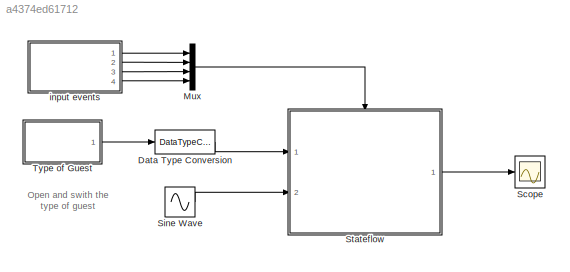
MODEL slx_a4374ed61712
KIND model
CONFIG AbsTol = auto
CONFIG FixedStep = 0.1
CONFIG MaxStep = auto
CONFIG MinStep = auto
CONFIG RelTol = 1e-3
CONFIG SampleTimeConstraint = Unconstrained
CONFIG Solver = FixedStepDiscrete
CONFIG SolverMode = Auto
CONFIG SolverName = FixedStepDiscrete
CONFIG StartTime = 0.0
CONFIG StopTime = 10.0
BLOCK [DataTypeConversion] Data Type Conversion
  OutDataTypeStr = int8
  RndMeth = Floor
  SaturateOnIntegerOverflow = off
BLOCK [Mux] Mux
  DisplayOption = bar
  Ports = [4, 1]
BLOCK [Scope] Scope
  Ports = [1]
  ScopeSpecificationString = C++SS(StrPVP('Location','[656, 93, 980, 332]'),StrPVP('Open','off'),MxPVP('AxesTitles',24,'struct(''axes1'',''%<SignalLabel>'')'),StrPVP('ShowLegends','off'),StrPVP('TimeRange','10'),StrPVP('YMin','-4'),StrPVP('YMax','4'),StrPVP('DataFormat','StructureWithTime'),StrPVP('BlockParamSampleTime','0'),StrPVP('LimitDataPoints','on'),StrPVP('Decimation','1'),StrPVP('BlockParamSampleInput','off'))
BLOCK [Sin] Sine Wave
  Amplitude = 2
  Frequency = 10
  Ports = [0, 1]
  SampleTime = 0.1
  Samples = 20
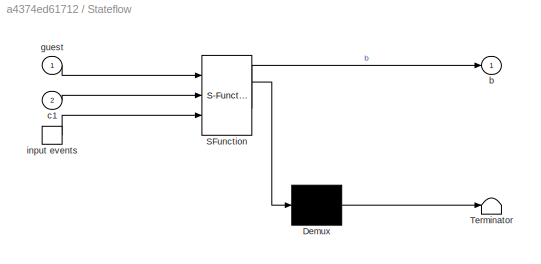
BLOCK [SubSystem] Stateflow
  ErrorFcn = Stateflow.Translate.translate
  PermitHierarchicalResolution = ExplicitOnly
  Ports = [2, 1, 0, 1]
  RequestExecContextInheritance = off
  SFBlockType = Chart
  TreatAsAtomicUnit = on
  Variant = off
BLOCK [Demux] Stateflow/ Demux 
  Outputs = 1
  Ports = [1, 1]
BLOCK [S-Function] Stateflow/ SFunction 
  EnableBusSupport = off
  FunctionName = sf_sfun
  PortCounts = [3 2]
  Ports = [3, 2]
  SFunctionDeploymentMode = off
  Tag = Stateflow S-Function model02_2015b 1
BLOCK [Terminator] Stateflow/ Terminator 
BLOCK [TriggerPort] Stateflow/ input events 
  Ports = [0, 1]
  ShowOutputPort = on
BLOCK [Outport] Stateflow/b
  IconDisplay = Port number
BLOCK [Inport] Stateflow/c1
  IconDisplay = Port number
  Port = 2
BLOCK [Inport] Stateflow/guest
  IconDisplay = Port number
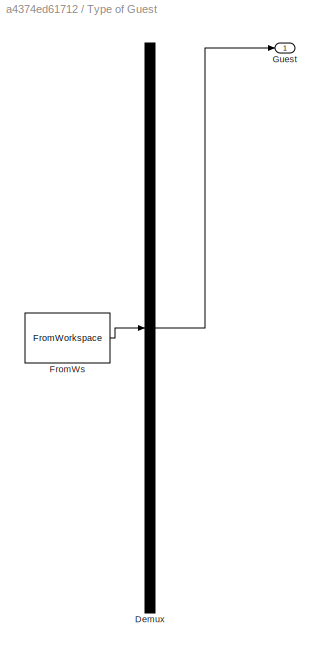
BLOCK [SubSystem] Type of Guest
  ClipboardFcn = sigbuilder_block('clipboard');
  CloseFcn = sigbuilder_block('close');
  ContinueFcn = sigbuilder_block('continue')
  CopyFcn = sigbuilder_block('copy');
  DeleteFcn = sigbuilder_block('delete');
  LoadFcn = sigbuilder_block('load');
  MaskHideContents = on
  ModelCloseFcn = sigbuilder_block('modelClose');
  NameChangeFcn = sigbuilder_block('namechange');
  OpenFcn = sigbuilder_block('open',[147.75 115.5 550.5 360 ]);
  PauseFcn = sigbuilder_block('pause')
  Ports = [0, 1]
  PreSaveFcn = sigbuilder_block('preSave');
  RequestExecContextInheritance = off
  StartFcn = sigbuilder_block('start');
  StopFcn = sigbuilder_block('stop');
  Tag = STV Subsys
  Variant = off
BLOCK [Demux] Type of Guest/Demux
  Outputs = 1
  Ports = [1, 1]
  Tag = STV Demux
BLOCK [FromWorkspace] Type of Guest/FromWs
  SampleTime = 0
  Tag = STV FromWs
  VariableName = tuvar
  ZeroCross = on
BLOCK [Outport] Type of Guest/Guest
  IconDisplay = Port number
  Tag = STV Outport
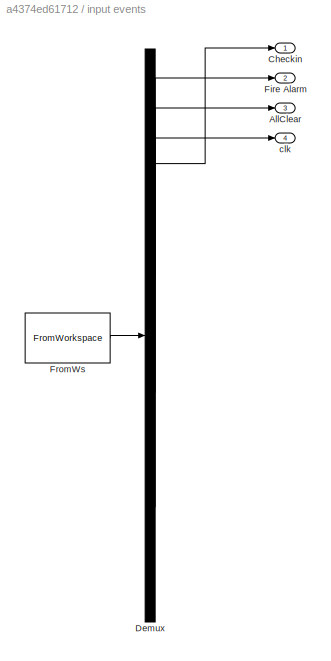
BLOCK [SubSystem] input events
  ClipboardFcn = sigbuilder_block('clipboard');
  CloseFcn = sigbuilder_block('close');
  ContinueFcn = sigbuilder_block('continue')
  CopyFcn = sigbuilder_block('copy');
  DeleteFcn = sigbuilder_block('delete');
  LoadFcn = sigbuilder_block('load');
  MaskHideContents = on
  ModelCloseFcn = sigbuilder_block('modelClose');
  NameChangeFcn = sigbuilder_block('namechange');
  OpenFcn = sigbuilder_block('open',[121.5 125.25 549.75 360 ]);
  PauseFcn = sigbuilder_block('pause')
  Ports = [0, 4]
  PreSaveFcn = sigbuilder_block('preSave');
  RequestExecContextInheritance = off
  StartFcn = sigbuilder_block('start');
  StopFcn = sigbuilder_block('stop');
  Tag = STV Subsys
  Variant = off
BLOCK [Outport] input events/AllClear
  IconDisplay = Port number
  Port = 3
  Tag = STV Outport
BLOCK [Outport] input events/Checkin
  IconDisplay = Port number
  Tag = STV Outport
BLOCK [Demux] input events/Demux
  Ports = [1, 4]
  Tag = STV Demux
BLOCK [Outport] input events/Fire Alarm
  IconDisplay = Port number
  Port = 2
  Tag = STV Outport
BLOCK [FromWorkspace] input events/FromWs
  SampleTime = 0
  Tag = STV FromWs
  VariableName = tuvar
  ZeroCross = on
BLOCK [Outport] input events/clk
  IconDisplay = Port number
  Port = 4
  Tag = STV Outport
ANNOTATION (root): Open and swith the type of guest
LINE Data Type Conversion:1 -> Stateflow:1
LINE Mux:1 -> Stateflow:trigger
LINE Sine Wave:1 -> Stateflow:2
LINE Stateflow:1 -> Scope:1
LINE Type of Guest/Demux:1 -> Type of Guest/Guest:1
LINE Type of Guest/FromWs:1 -> Type of Guest/Demux:1
LINE Type of Guest:1 -> Data Type Conversion:1
LINE input events/Demux:1 -> input events/Checkin:1
LINE input events/Demux:2 -> input events/Fire Alarm:1
LINE input events/Demux:3 -> input events/AllClear:1
LINE input events/Demux:4 -> input events/clk:1
LINE input events/FromWs:1 -> input events/Demux:1
LINE input events:1 -> Mux:1
LINE input events:2 -> Mux:2
LINE input events:3 -> Mux:3
LINE input events:4 -> Mux:4
CHART Stateflow states=15 transitions=30
  STATE_LABEL 'HotelStateflow'
  STATE_LABEL 'NonSmokingRoom\n entry: b=unpack();\n during: b=callhome();\n exit: b=pack();'
  STATE_LABEL 'y=pack'
  STATE_LABEL '{ aVarTruthTableCondition_1 = (c1>1); }'
  STATE_LABEL '[aVarTruthTableCondition_1]'
  STATE_LABEL '{ y=2; }'
  STATE_LABEL '[!aVarTruthTableCondition_1]'
  STATE_LABEL '{ y=1; }'
  STATE_LABEL 'y=unpack'
  STATE_LABEL '[c1<0]'
  STATE_LABEL '{y=3;}'
  STATE_LABEL '{y=4;}'
  STATE_LABEL 'y=callhome'
  STATE_LABEL 'SCRIPT:\nfunction y=callhome()\n\n%do some calculations\n \ny=c1*2;'
  STATE_LABEL 'wait'
  STATE_LABEL 'SmokingRoom'
  STATE_LABEL 'ExecutiveSuite'
  STATE_LABEL 'MasterBed'
  STATE_LABEL 'SecondBed'
  STATE_LABEL '[c1]'
  STATE_LABEL '[c1]'
  STATE_LABEL 'FamilySuite'
  STATE_LABEL 'MasterBed'
  STATE_LABEL 'SecondBed'
  STATE_LABEL 'y=is_family(x)'
  STATE_LABEL '[x>2]'
  STATE_LABEL '{y=0;}'
  STATE_LABEL '{y=1;}'
  STATE_LABEL 'checkin'
  STATE_LABEL '[is_family(guest)]'
  STATE_LABEL '[guest==rich]'
  STATE_LABEL '[guest==smoking]'
  STATE_LABEL 'H'
  STATE_LABEL 'NonSmokingRoom\n entry: b=unpack();\n during: b=callhome();\n exit: b=pack();'
  STATE_LABEL 'y=pack'
  STATE_LABEL '{ aVarTruthTableCondition_1 = (c1>1); }'
  STATE_LABEL '[aVarTruthTableCondition_1]'
  STATE_LABEL '{ y=2; }'
  STATE_LABEL '[!aVarTruthTableCondition_1]'
  STATE_LABEL '{ y=1; }'
